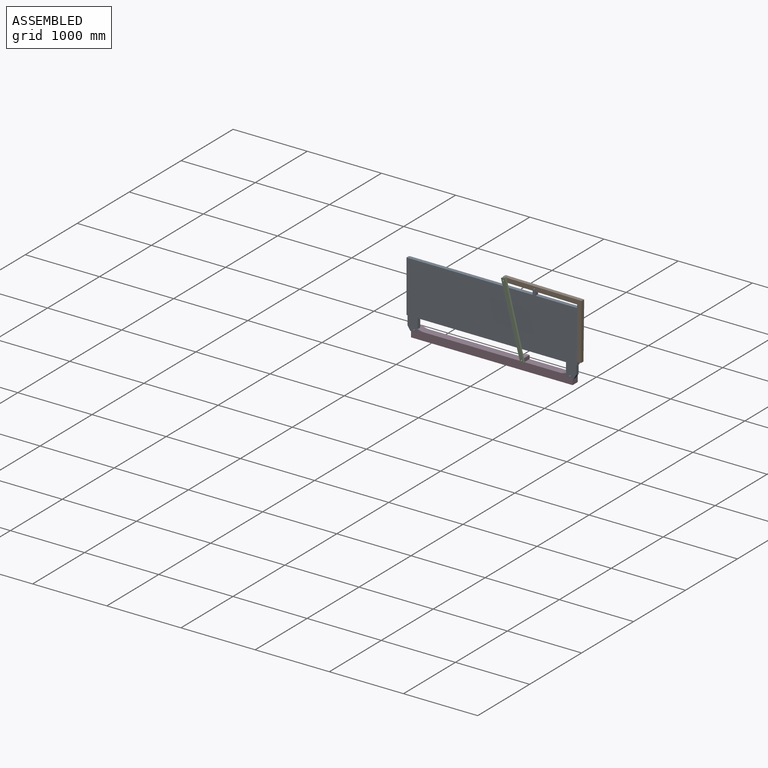
[diagram: assembled view]
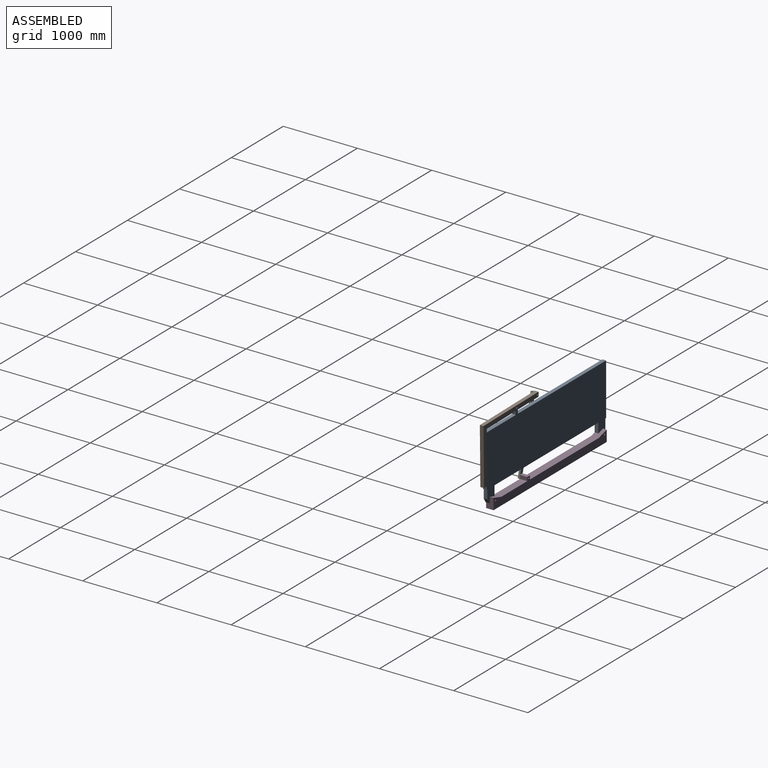
[diagram: assembled view, second angle]
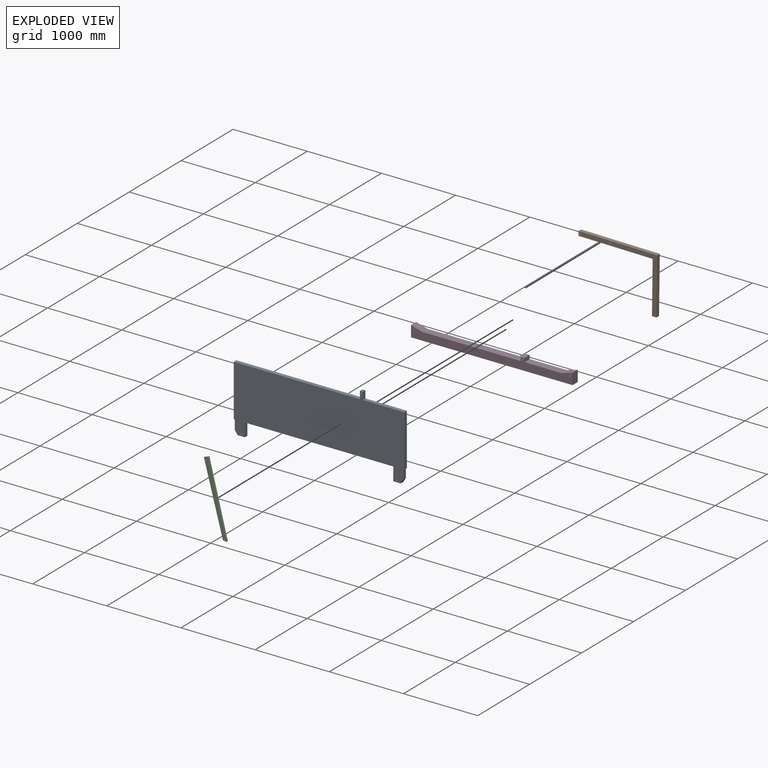
[diagram: exploded view]
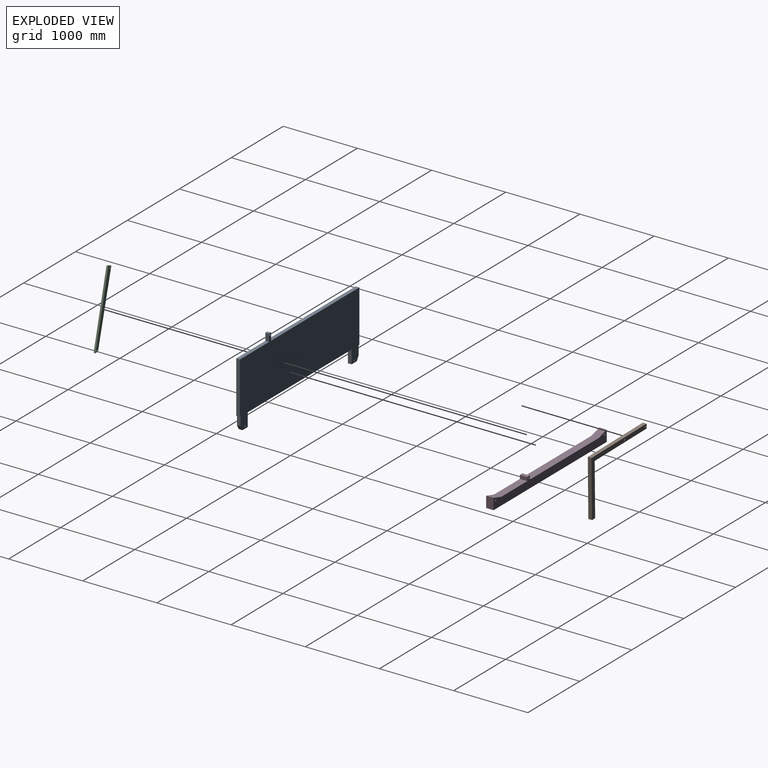
[diagram: exploded view, second angle]
ASSEMBLY  parts=4 mates=4
PART A: 23 faces, bbox 2300x50x980 mm
  f0: plane 560x50mm, normal (0,0,1), area 28000mm2, adj f1,f19,f21,f22
  f1: plane 100x50mm, normal (1,0,0), area 5000mm2, adj f0,f2,f21,f22
  f2: plane 50x40mm, normal (0,0,1), area 2000mm2, adj f1,f3,f21,f22
  f3: plane 100x50mm, normal (-1,0,0), area 5000mm2, adj f2,f4,f21,f22
  f4: plane 1700x50mm, normal (0,0,1), area 85000mm2, adj f3,f5,f21,f22
  f5: plane 700x50mm, normal (-1,0,0), area 35000mm2, adj f4,f6,f21,f22
  f6: plane 50x13.87mm, normal (0,0,-1), area 693.4mm2, adj f5,f7,f21,f22
  f7: plane 122.19x50mm, normal (-1,0,0), area 6109.5mm2, adj f6,f8,f21,f22
  f8: plane 57.81x50mm, normal (-0.85,0,-0.53), area 3408.7mm2, adj f7,f9,f21,f22
  f9: plane 100x50mm, normal (0,0,-1), area 5000mm2, adj f8,f10,f21,f22
  f10: plane 180x50mm, normal (1,0,0), area 9000mm2, adj f9,f11,f21,f22
  f11: plane 2000x50mm, normal (0,0,-1), area 100000mm2, adj f10,f12,f21,f22
  f12: plane 180x50mm, normal (-1,0,0), area 9000mm2, adj f11,f13,f21,f22
  f13: plane 100x50mm, normal (0,0,-1), area 5000mm2, adj f12,f14,f21,f22
  f14: plane 57.81x50mm, normal (0.85,0,-0.53), area 3408.7mm2, adj f13,f15,f21,f22
  f15: plane 122.19x50mm, normal (1,0,0), area 6109.5mm2, adj f14,f16,f21,f22
  f16: plane 50x13.87mm, normal (0,0,-1), area 693.4mm2, adj f15,f19,f21,f22
  f17: cylinder r=10mm len=50mm, axis (0,1,0), area 3141.6mm2, adj f21,f22
  f18: cylinder r=10mm len=50mm, axis (0,1,0), area 3141.6mm2, adj f21,f22
  f19: plane 700x50mm, normal (1,0,0), area 35000mm2, adj f0,f16,f21,f22
  f20: cylinder r=10mm len=50mm, axis (0,1,0), area 3141.6mm2, adj f21,f22
  f21: plane 2300x980mm, normal (0,-1,0), area 1659976.1mm2, adj f0,f1,f2,f3,f4,f5,f6,f7
  f22: plane 2300x980mm, normal (0,1,0), area 1659976.1mm2, adj f0,f1,f2,f3,f4,f5,f6,f7
PART B: 10 faces, bbox 1060x50x760 mm
  f0: plane 700x50mm, normal (-1,0,0), area 35000mm2, adj f1,f6,f8,f9
  f1: plane 60x50mm, normal (0,0,-1), area 3000mm2, adj f0,f2,f8,f9
  f2: plane 760x50mm, normal (1,0,0), area 38000mm2, adj f1,f3,f8,f9
  f3: plane 1060x50mm, normal (0,0,1), area 53000mm2, adj f2,f4,f8,f9
  f4: plane 60x50mm, normal (-1,0,0), area 3000mm2, adj f3,f6,f8,f9
  f5: cylinder r=10mm len=50mm, axis (0,-1,0), area 3141.6mm2, adj f8,f9
  f6: plane 1000x50mm, normal (0,0,-1), area 50000mm2, adj f0,f4,f8,f9
  f7: cylinder r=10mm len=50mm, axis (0,-1,0), area 3141.6mm2, adj f8,f9
  f8: plane 1060x760mm, normal (0,1,0), area 104971.7mm2, adj f0,f1,f2,f3,f4,f5,f6,f7
  f9: plane 1060x760mm, normal (0,-1,0), area 104971.7mm2, adj f0,f1,f2,f3,f4,f5,f6,f7
PART C: 8 faces, bbox 326.7x25x964.7 mm
  f0: plane 50.64x25mm, normal (-0.18,0,-0.98), area 1287.4mm2, adj f1,f3,f6,f7
  f1: plane 964.67x270.52mm, normal (0.96,0,0.27), area 25047.2mm2, adj f0,f2,f6,f7
  f2: plane 56.16x25mm, normal (-0.34,0,0.94), area 1493.8mm2, adj f1,f3,f6,f7
  f3: plane 934.9x276.03mm, normal (-0.96,0,-0.28), area 24370mm2, adj f0,f2,f6,f7
  f4: cylinder r=10mm len=25mm, axis (0,1,0), area 1570.8mm2, adj f6,f7
  f5: cylinder r=10mm len=25mm, axis (0,1,0), area 1570.8mm2, adj f6,f7
  f6: plane 964.67x326.67mm, normal (0,-1,0), area 51599.8mm2, adj f0,f1,f2,f3,f4,f5
  f7: plane 964.67x326.67mm, normal (0,1,0), area 51599.8mm2, adj f0,f1,f2,f3,f4,f5
PART D: 15 faces, bbox 2178.8x100x156.4 mm
  f0: plane 100x50mm, normal (-1,0,0), area 5000mm2, adj f1,f11,f13,f14
  f1: plane 1330.21x100mm, normal (0,0,1), area 133021.2mm2, adj f0,f2,f13,f14
  f2: plane 148.61x100mm, normal (0.28,0,0.96), area 15487.2mm2, adj f1,f3,f13,f14
  f3: plane 150x100mm, normal (-1,0,0), area 15000mm2, adj f2,f4,f13,f14
  f4: plane 2178.82x100mm, normal (0,0,-1), area 217882.4mm2, adj f3,f5,f13,f14
  f5: plane 150x100mm, normal (1,0,0), area 15000mm2, adj f4,f6,f13,f14
  f6: plane 148.61x100mm, normal (-0.28,0,0.96), area 15487.2mm2, adj f5,f7,f13,f14
  f7: plane 501.39x100mm, normal (0,0,1), area 50138.7mm2, adj f6,f8,f13,f14
  f8: plane 100x50mm, normal (1,0,0), area 5000mm2, adj f7,f11,f13,f14
  f9: cylinder r=10mm len=100mm, axis (0,1,0), area 6283.2mm2, adj f13,f14
  f10: cylinder r=10mm len=100mm, axis (0,1,0), area 6283.2mm2, adj f13,f14
  f11: plane 100x50mm, normal (0,0,1), area 5000mm2, adj f0,f8,f13,f14
  f12: cylinder r=10mm len=100mm, axis (0,1,0), area 6283.2mm2, adj f13,f14
  f13: plane 2178.82x156.42mm, normal (0,-1,0), area 239895.4mm2, adj f0,f1,f2,f3,f4,f5,f6,f7
  f14: plane 2178.82x156.42mm, normal (0,1,0), area 239895.4mm2, adj f0,f1,f2,f3,f4,f5,f6,f7
PLACE A rot(axis=(0,1,0),0deg) t=(-126.08,-269.62,375.11)mm
PLACE B rot(axis=(0,1,0),0.8deg) t=(-127.84,-269.62,432.55)mm
PLACE C rot(axis=(0,1,0),1.3deg) t=(-106.86,-269.62,379.02)mm
PLACE D t=(-126.08,-244.62,375.11)mm fixed
MATE revolute D.f10 <-> C.f4  axis (0,-1,0) through (279.41,-394.62,-343.6)mm
MATE revolute B.f7 <-> C.f5  axis (0,-1,0) through (35.03,-394.62,566.69)mm
MATE revolute B.f5 <-> A.f20  axis (0,-1,0) through (435,-394.62,561.4)mm
MATE revolute A.f18 <-> D.f9  axis (0,-1,0) through (915,-394.62,-368.6)mm
